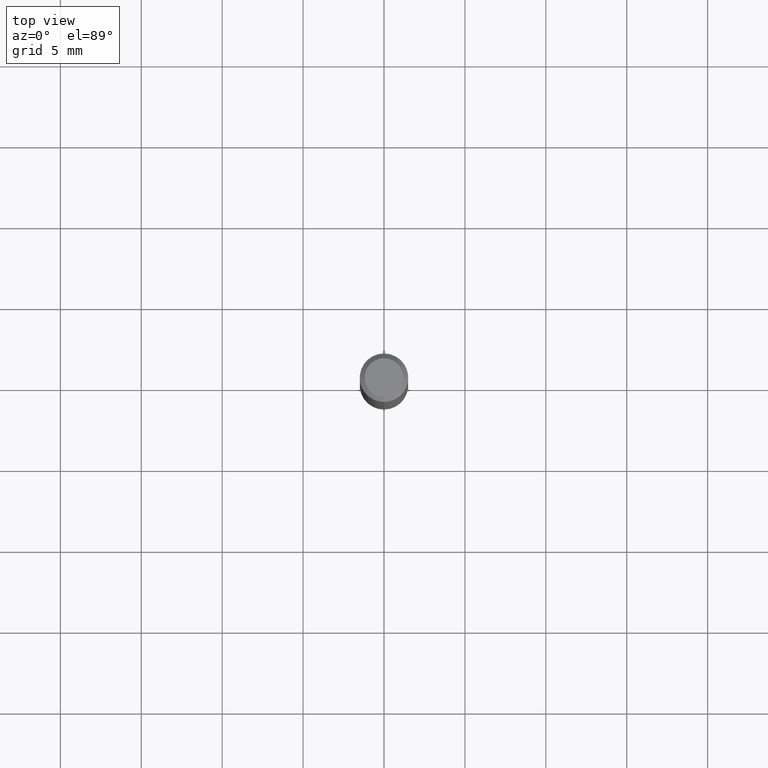
[diagram: clean part render]
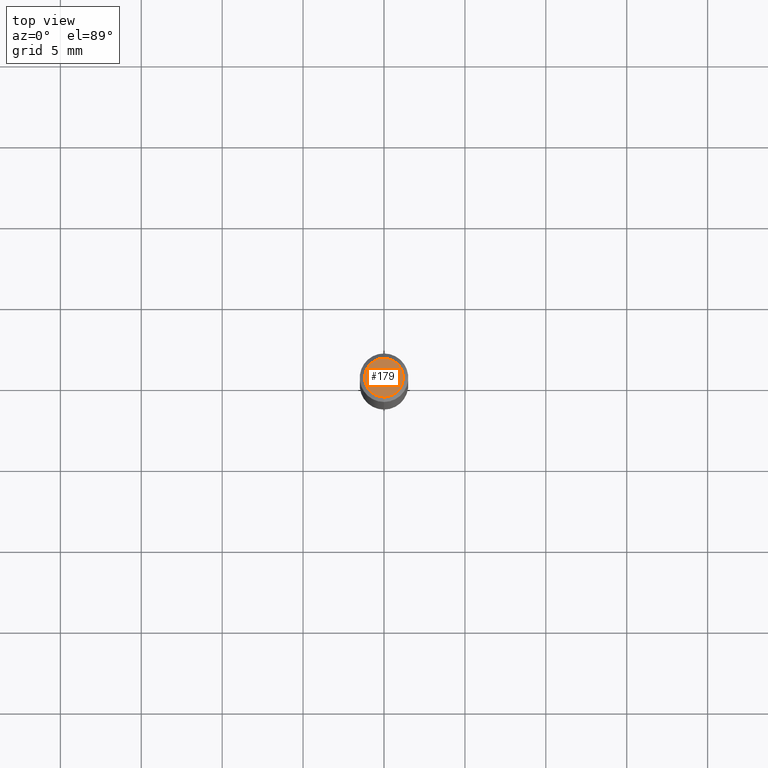
[diagram: same view with one face highlighted and labeled with its STEP entity id]
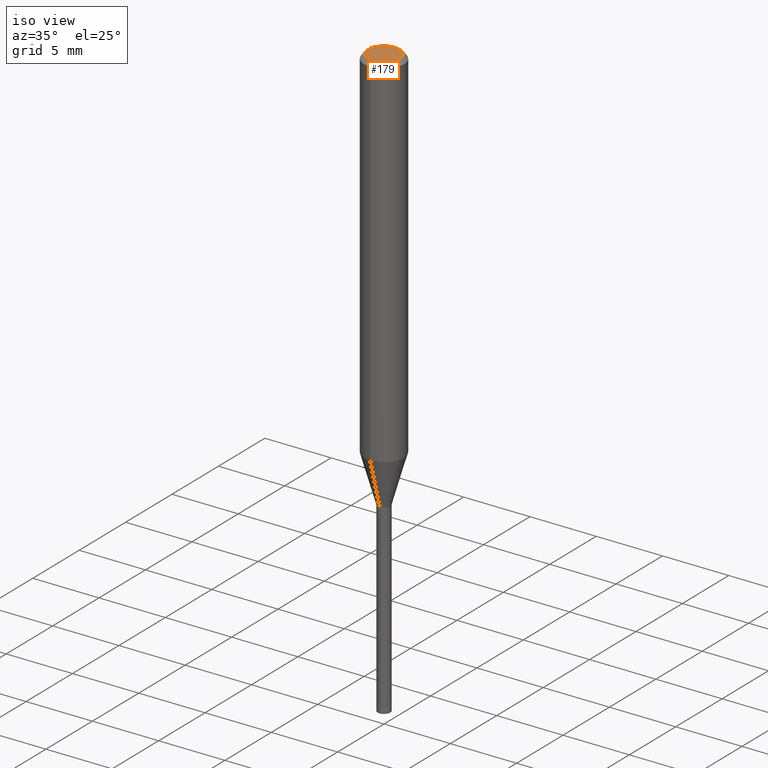
[diagram: same view with one face highlighted and labeled with its STEP entity id]
A machine part, top view. The second image highlights one B-rep face of the part: STEP entity #179.
A second angle (iso view) of the same face is appended — the face is thin or edge-on in the first view.
In plain terms, the highlighted planar face has unit normal (-0, 0, 1).
Its self-contained STEP definition (entity closure, byte-faithful):
#91=EDGE_CURVE('',#173,#193,#226,.T.);
#173=VERTEX_POINT('',#317);
#177=EDGE_CURVE('',#193,#173,#322,.T.);
#179=ADVANCED_FACE('',(#324),#325,.T.);
#193=VERTEX_POINT('',#341);
#226=CIRCLE('',#369,1.2);
#317=CARTESIAN_POINT('',(1.46952762458685E-016,-1.2,0.0));
#322=CIRCLE('',#496,1.2);
#324=FACE_OUTER_BOUND('',#498,.T.);
#325=PLANE('',#499);
#341=CARTESIAN_POINT('',(0.0,1.2,0.0));
#369=AXIS2_PLACEMENT_3D('',#535,#536,#537);
#496=AXIS2_PLACEMENT_3D('',#657,#658,#659);
#498=EDGE_LOOP('',(#661,#662));
#499=AXIS2_PLACEMENT_3D('',#663,#664,#665);
#535=CARTESIAN_POINT('',(0.0,0.0,0.0));
#536=DIRECTION('',(0.0,0.0,-1.0));
#537=DIRECTION('',(0.0,1.0,0.0));
#657=CARTESIAN_POINT('',(0.0,0.0,0.0));
#658=DIRECTION('',(0.0,0.0,-1.0));
#659=DIRECTION('',(0.0,1.0,0.0));
#661=ORIENTED_EDGE('',*,*,#177,.F.);
#662=ORIENTED_EDGE('',*,*,#91,.F.);
#663=CARTESIAN_POINT('',(0.0,0.6,0.0));
#664=DIRECTION('',(-0.0,0.0,1.0));
#665=DIRECTION('',(0.0,-1.0,0.0));